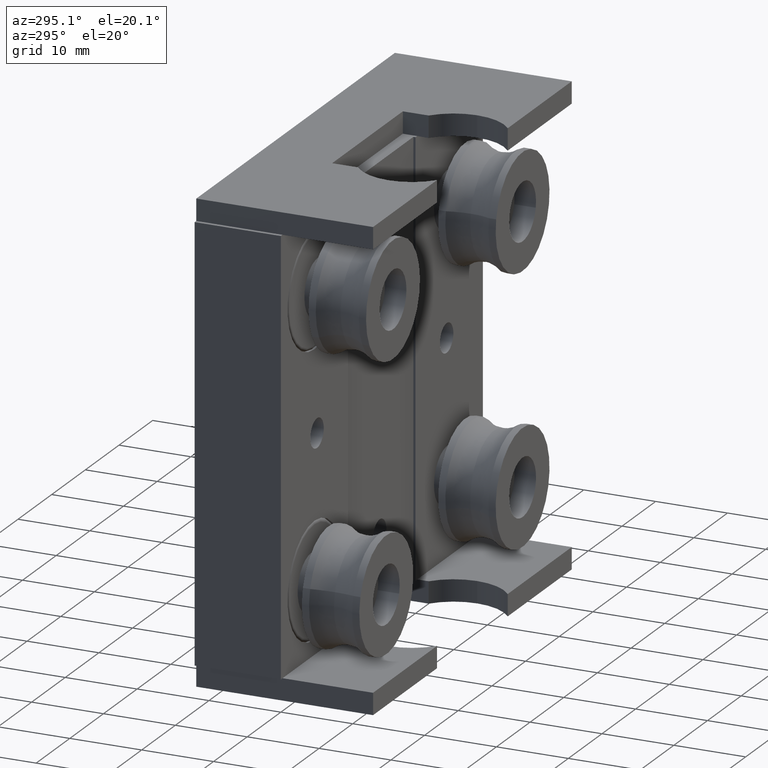
[diagram: clean part render]
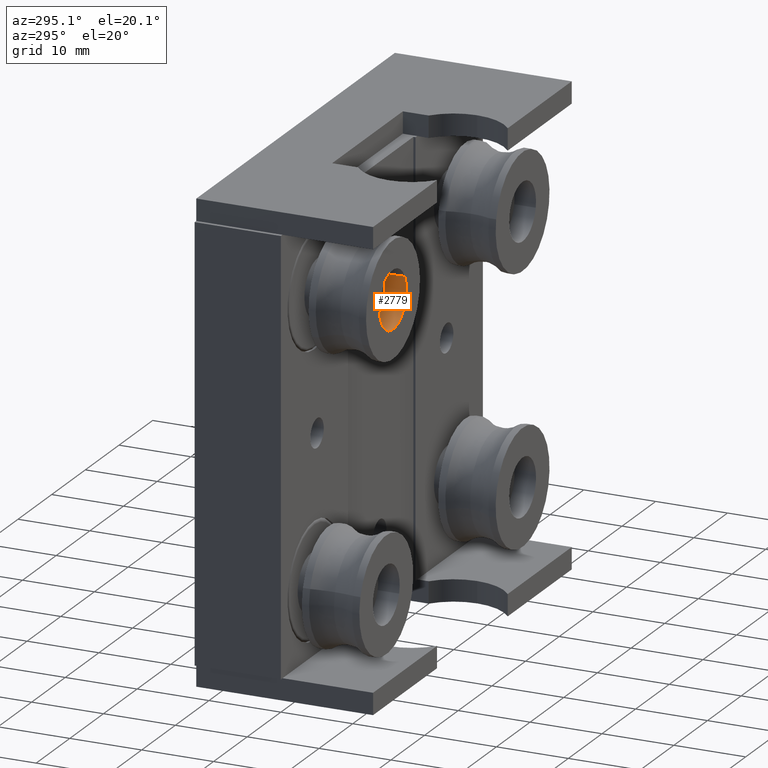
[diagram: same view with one face highlighted and labeled with its STEP entity id]
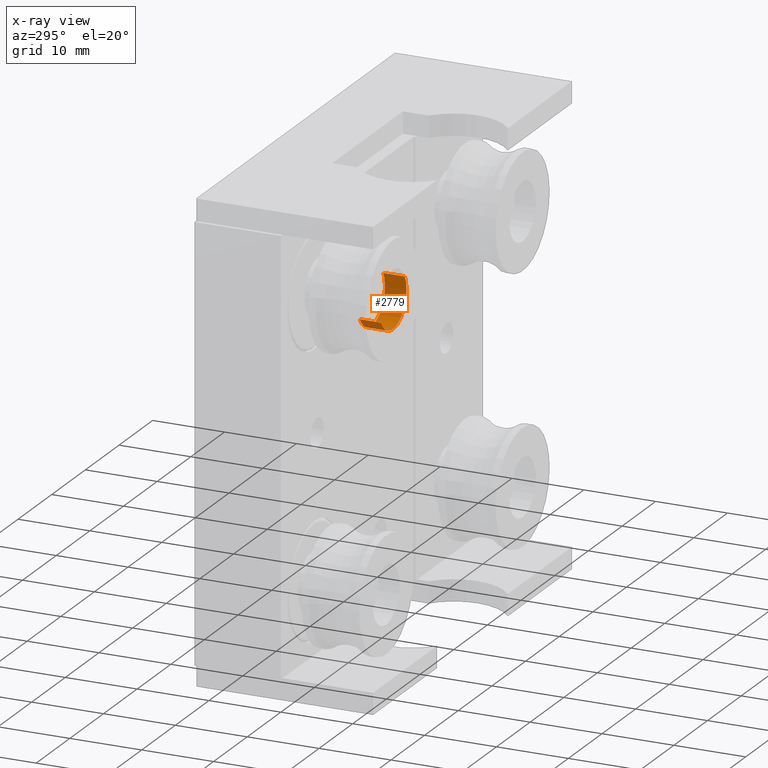
[diagram: x-ray of the same camera — body ghosted, the highlighted face saturated]
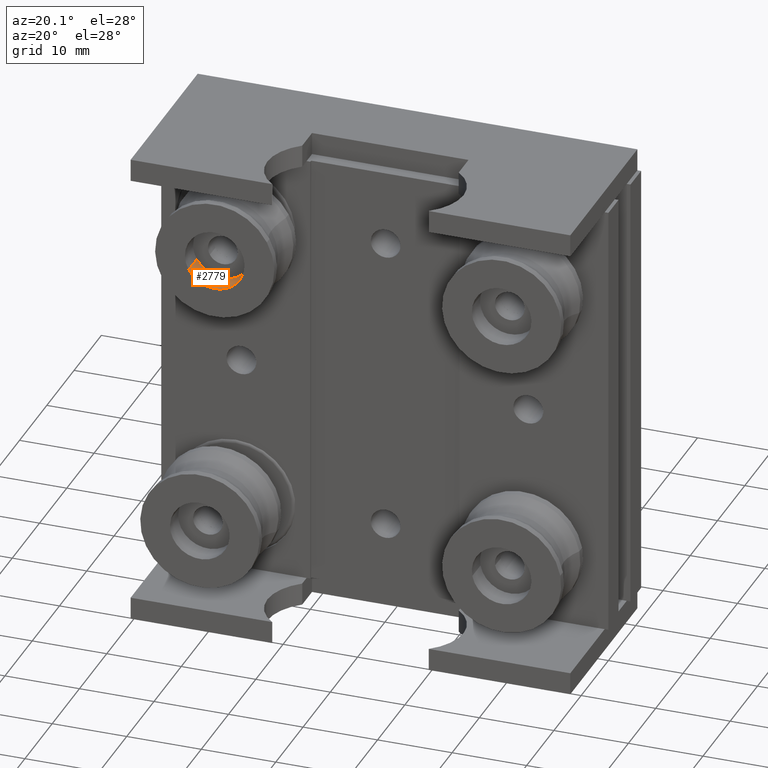
[diagram: same view with one face highlighted and labeled with its STEP entity id]
A machine part, auxiliary view. The second image highlights one B-rep face of the part: STEP entity #2779.
The next image is the same camera in x-ray: the body ghosted, the highlighted face saturated — about 0% of this face is hidden behind the body in this view.
A second angle (auxiliary view) of the same face is appended — the face is thin or edge-on in the first view.
In plain terms, the highlighted cylindrical surface (edge-blend (fillet) strip) has radius 4 mm, axis along (-0, -1, -0).
Its self-contained STEP definition (entity closure, byte-faithful):
#121 = VERTEX_POINT ( 'NONE', #2235 ) ;
#196 = LINE ( 'NONE', #1955, #2230 ) ;
#246 = EDGE_CURVE ( 'NONE', #602, #3244, #1976, .T. ) ;
#268 = DIRECTION ( 'NONE',  ( -0.000000000000000000, -0.000000000000000000, 1.000000000000000000 ) ) ;
#393 = DIRECTION ( 'NONE',  ( 1.000000000000000000, 0.000000000000000000, 0.000000000000000000 ) ) ;
#438 = VERTEX_POINT ( 'NONE', #1337 ) ;
#533 = AXIS2_PLACEMENT_3D ( 'NONE', #2280, #2294, #2015 ) ;
#602 = VERTEX_POINT ( 'NONE', #1747 ) ;
#614 = EDGE_LOOP ( 'NONE', ( #2113, #2510, #2357, #2802 ) ) ;
#691 = FACE_OUTER_BOUND ( 'NONE', #614, .T. ) ;
#745 = DIRECTION ( 'NONE',  ( 1.000000000000000000, 0.000000000000000000, 0.000000000000000000 ) ) ;
#801 = CARTESIAN_POINT ( 'NONE',  ( -4.000000000000000000, 4.898587196589412829E-16, 5.000000000000001776 ) ) ;
#955 = AXIS2_PLACEMENT_3D ( 'NONE', #2004, #2242, #745 ) ;
#957 = CARTESIAN_POINT ( 'NONE',  ( -4.000000000000000000, 4.898587196589412829E-16, 5.000000000000001776 ) ) ;
#1298 = AXIS2_PLACEMENT_3D ( 'NONE', #3176, #2151, #393 ) ;
#1337 = CARTESIAN_POINT ( 'NONE',  ( -4.000000000000000000, 4.898587196589412829E-16, 8.000000000000001776 ) ) ;
#1747 = CARTESIAN_POINT ( 'NONE',  ( 4.000000000000000000, 0.000000000000000000, 5.000000000000001776 ) ) ;
#1936 = DIRECTION ( 'NONE',  ( -0.000000000000000000, -0.000000000000000000, 1.000000000000000000 ) ) ;
#1955 = CARTESIAN_POINT ( 'NONE',  ( 4.000000000000000000, 0.000000000000000000, 5.000000000000001776 ) ) ;
#1976 = CIRCLE ( 'NONE', #533, 4.000000000000000000 ) ;
#2004 = CARTESIAN_POINT ( 'NONE',  ( 0.000000000000000000, 0.000000000000000000, 5.000000000000001776 ) ) ;
#2015 = DIRECTION ( 'NONE',  ( 1.000000000000000000, 0.000000000000000000, 0.000000000000000000 ) ) ;
#2017 = EDGE_CURVE ( 'NONE', #121, #438, #2266, .T. ) ;
#2113 = ORIENTED_EDGE ( 'NONE', *, *, #2898, .F. ) ;
#2151 = DIRECTION ( 'NONE',  ( 0.000000000000000000, 0.000000000000000000, 1.000000000000000000 ) ) ;
#2224 = CYLINDRICAL_SURFACE ( 'NONE', #955, 4.000000000000000000 ) ;
#2230 = VECTOR ( 'NONE', #1936, 1000.000000000000000 ) ;
#2235 = CARTESIAN_POINT ( 'NONE',  ( 4.000000000000000000, 0.000000000000000000, 8.000000000000001776 ) ) ;
#2242 = DIRECTION ( 'NONE',  ( -0.000000000000000000, -0.000000000000000000, 1.000000000000000000 ) ) ;
#2266 = CIRCLE ( 'NONE', #1298, 4.000000000000000000 ) ;
#2280 = CARTESIAN_POINT ( 'NONE',  ( 0.000000000000000000, 0.000000000000000000, 5.000000000000001776 ) ) ;
#2294 = DIRECTION ( 'NONE',  ( 0.000000000000000000, 0.000000000000000000, 1.000000000000000000 ) ) ;
#2309 = LINE ( 'NONE', #801, #2992 ) ;
#2357 = ORIENTED_EDGE ( 'NONE', *, *, #2812, .T. ) ;
#2510 = ORIENTED_EDGE ( 'NONE', *, *, #246, .F. ) ;
#2779 = ADVANCED_FACE ( 'NONE', ( #691 ), #2224, .F. ) ;
#2802 = ORIENTED_EDGE ( 'NONE', *, *, #2017, .T. ) ;
#2812 = EDGE_CURVE ( 'NONE', #602, #121, #196, .T. ) ;
#2898 = EDGE_CURVE ( 'NONE', #3244, #438, #2309, .T. ) ;
#2992 = VECTOR ( 'NONE', #268, 1000.000000000000000 ) ;
#3176 = CARTESIAN_POINT ( 'NONE',  ( 0.000000000000000000, 0.000000000000000000, 8.000000000000001776 ) ) ;
#3244 = VERTEX_POINT ( 'NONE', #957 ) ;